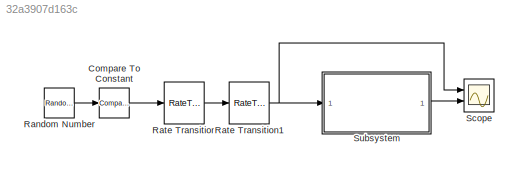
MODEL slx_32a3907d163c
KIND model
CONFIG AbsTol = auto
CONFIG FixedStep = auto
CONFIG MaxStep = auto
CONFIG MinStep = auto
CONFIG RelTol = 1e-3
CONFIG SampleTimeConstraint = Unconstrained
CONFIG Solver = ode45
CONFIG SolverMode = Auto
CONFIG SolverName = ode45
CONFIG StartTime = 0.0
CONFIG StopTime = 100
BLOCK [Reference] Compare To Constant  REF=simulink/Logic and Bit
Operations/Compare
To Constant
  Ports = [1, 1]
  SourceBlock = simulink/Logic and Bit\nOperations/Compare\nTo Constant
  SourceType = Compare To Constant
BLOCK [RandomNumber] Random Number
  SampleTime = 0.01
BLOCK [RateTransition] Rate Transition
  OutPortSampleTime = 0.1
BLOCK [RateTransition] Rate Transition1
  OutPortSampleTime = 1
BLOCK [Scope] Scope
  NumInputPorts = 2
  Ports = [2]
  ScopeSpecificationString = Simulink.scopes.TimeScopeBlockCfg('CurrentConfiguration', extmgr.ConfigurationSet(extmgr.Configuration('Core','General UI',true),extmgr.Configuration('Core','Source UI',true),extmgr.Configuration('Sources','WiredSimulink',true,'DataLoggingSaveFormat','StructureWithTime','DataLoggingDecimation','1','DataLoggingDecimateData',true),extmgr.Configuration('Visuals','Time Domain',true,'SerializedDisplays...<+2381ch>
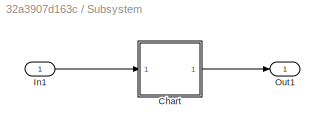
BLOCK [SubSystem] Subsystem
  Ports = [1, 1]
  RequestExecContextInheritance = off
  Variant = off
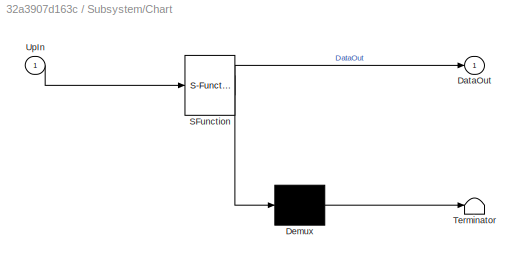
BLOCK [SubSystem] Subsystem/Chart
  ErrorFcn = Stateflow.Translate.translate
  PermitHierarchicalResolution = ExplicitOnly
  Ports = [1, 1]
  RequestExecContextInheritance = off
  SFBlockType = Chart
  TreatAsAtomicUnit = on
  Variant = off
BLOCK [Demux] Subsystem/Chart/ Demux 
  Outputs = 1
  Ports = [1, 1]
BLOCK [S-Function] Subsystem/Chart/ SFunction 
  EnableBusSupport = on
  FunctionName = sf_sfun
  PortCounts = [1 2]
  Ports = [1, 2]
  SFunctionDeploymentMode = off
  Tag = Stateflow S-Function sf_func 2
BLOCK [Terminator] Subsystem/Chart/ Terminator 
BLOCK [Outport] Subsystem/Chart/DataOut
  IconDisplay = Port number
BLOCK [Inport] Subsystem/Chart/UpIn
  IconDisplay = Port number
BLOCK [Inport] Subsystem/In1
  IconDisplay = Port number
BLOCK [Outport] Subsystem/Out1
  IconDisplay = Port number
LINE Compare To Constant:1 -> Rate Transition:1
LINE Random Number:1 -> Compare To Constant:1
NET Rate Transition1:1 -> Scope:1, Subsystem:1
LINE Rate Transition:1 -> Rate Transition1:1
LINE Subsystem/Chart:1 -> Subsystem/Out1:1
LINE Subsystem/In1:1 -> Subsystem/Chart:1
LINE Subsystem:1 -> Scope:2
note: NET lines group one-source signal fan-out (src -> all destinations, sorted); 1:1 wires keep LINE
CHART Subsystem/Chart states=1 transitions=8
  STATE_LABEL 'Data = inc_data(Up,tmp)'
  STATE_LABEL '[Up == 1]\n{Data=tmp+1}'
  STATE_LABEL '[Data >= 10]\n{ Data = 0;}'
